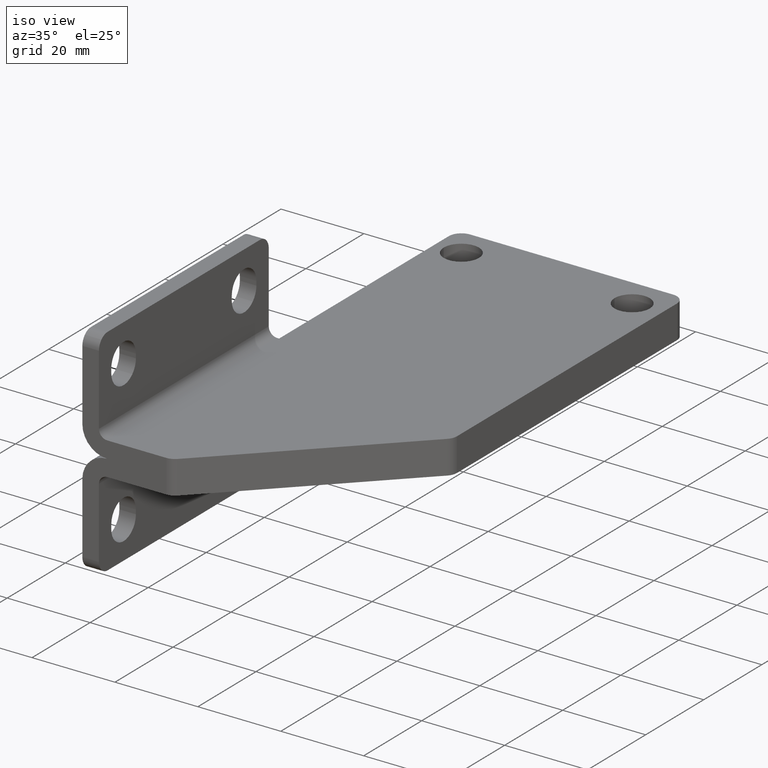
[diagram: clean part render]
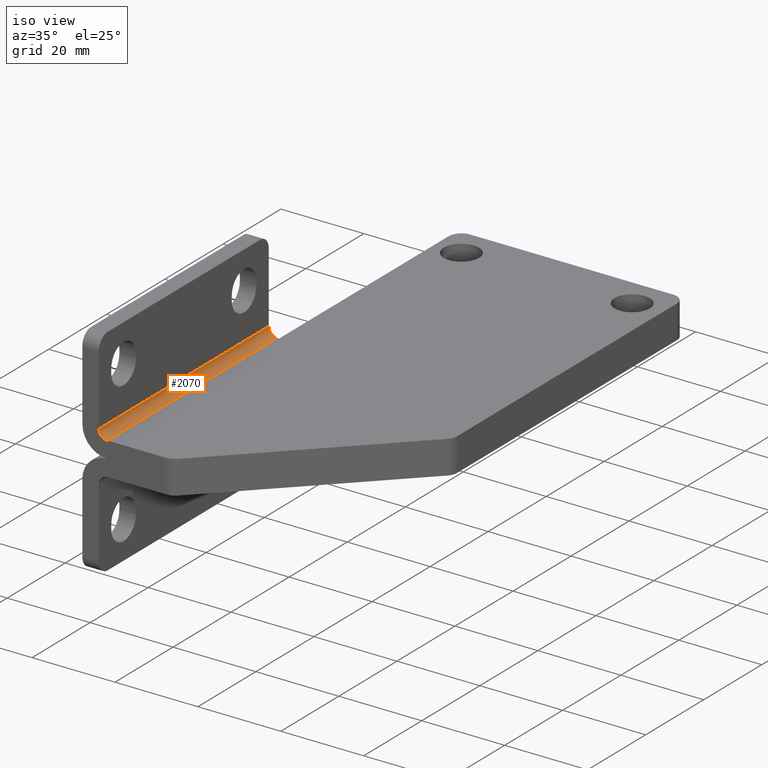
[diagram: same view with one face highlighted and labeled with its STEP entity id]
A machine part, iso view. The second image highlights one B-rep face of the part: STEP entity #2070.
In plain terms, the highlighted cylindrical surface (edge-blend (fillet) strip) has radius 2 mm, axis along (-0, 1, 0).
Its self-contained STEP definition (entity closure, byte-faithful):
#1923=CARTESIAN_POINT('',(-48.502768757920627,-4.804711860310976,6.0));
#1924=VERTEX_POINT('',#1923);
#1931=CARTESIAN_POINT('',(-48.502768757920634,53.695288139689026,6.0));
#1932=VERTEX_POINT('',#1931);
#1933=CARTESIAN_POINT('',(-48.502768757920627,-4.804711860310976,6.0));
#1934=DIRECTION('',(0.0,1.0,0.0));
#1935=VECTOR('',#1934,58.500000000000000);
#1936=LINE('',#1933,#1935);
#1937=EDGE_CURVE('',#1924,#1932,#1936,.T.);
#1999=CARTESIAN_POINT('',(-46.502768757920634,53.695288139689026,4.0));
#2000=VERTEX_POINT('',#1999);
#2001=CARTESIAN_POINT('',(-46.502768757920649,53.695288139689026,6.000000000000001));
#2002=DIRECTION('',(0.0,1.0,0.0));
#2003=DIRECTION('',(0.0,0.0,-1.0));
#2004=AXIS2_PLACEMENT_3D('',#2001,#2002,#2003);
#2005=CIRCLE('',#2004,2.000000000000001);
#2006=EDGE_CURVE('',#2000,#1932,#2005,.T.);
#2046=CARTESIAN_POINT('',(-46.502768757920634,24.445288139689030,6.000000000000001));
#2047=DIRECTION('',(-2.277381E-016,1.0,0.0));
#2048=DIRECTION('',(0.0,0.0,-1.0));
#2049=AXIS2_PLACEMENT_3D('',#2046,#2047,#2048);
#2050=CYLINDRICAL_SURFACE('',#2049,2.000000000000001);
#2051=ORIENTED_EDGE('',*,*,#1937,.F.);
#2052=CARTESIAN_POINT('',(-46.502768757920627,-4.804711860310976,4.0));
#2053=VERTEX_POINT('',#2052);
#2054=CARTESIAN_POINT('',(-46.502768757920627,-4.804711860310976,6.000000000000001));
#2055=DIRECTION('',(0.0,1.0,0.0));
#2056=DIRECTION('',(0.0,0.0,-1.0));
#2057=AXIS2_PLACEMENT_3D('',#2054,#2055,#2056);
#2058=CIRCLE('',#2057,2.000000000000001);
#2059=EDGE_CURVE('',#2053,#1924,#2058,.T.);
#2060=ORIENTED_EDGE('',*,*,#2059,.F.);
#2061=CARTESIAN_POINT('',(-46.502768757920634,53.695288139689026,4.0));
#2062=DIRECTION('',(0.0,-1.0,0.0));
#2063=VECTOR('',#2062,58.500000000000000);
#2064=LINE('',#2061,#2063);
#2065=EDGE_CURVE('',#2000,#2053,#2064,.T.);
#2066=ORIENTED_EDGE('',*,*,#2065,.F.);
#2067=ORIENTED_EDGE('',*,*,#2006,.T.);
#2068=EDGE_LOOP('',(#2051,#2060,#2066,#2067));
#2069=FACE_OUTER_BOUND('',#2068,.T.);
#2070=ADVANCED_FACE('',(#2069),#2050,.F.);